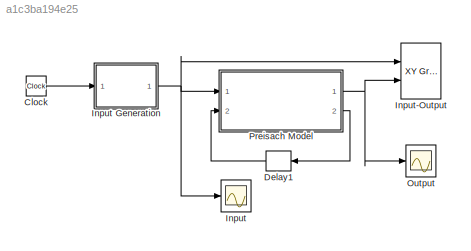
MODEL slx_a1c3ba194e25
KIND model
CONFIG AbsTol = auto
CONFIG EnableMultiTasking = off
CONFIG FixedStep = 0.05
CONFIG MaxStep = 0.1
CONFIG MinStep = 0.01
CONFIG RelTol = 1e-3
CONFIG SampleTimeConstraint = Unconstrained
CONFIG Solver = FixedStepAuto
CONFIG SolverName = FixedStepAuto
CONFIG StartTime = 0.0
CONFIG StopTime = simTotalTime
BLOCK [Clock] Clock
BLOCK [Delay] Delay1
  DelayLength = 1
  InitialCondition = initialRelays
  InputPortMap = u0
  Ports = [1, 1]
BLOCK [Scope] Input
  NumInputPorts = 1
  Ports = [1]
  ScopeSpecificationString = Simulink.scopes.TimeScopeBlockCfg('CurrentConfiguration', extmgr.ConfigurationSet(extmgr.Configuration('Core','General UI',true),extmgr.Configuration('Core','Source UI',true),extmgr.Configuration('Sources','WiredSimulink',true,'DataLoggingVariableName','ScopeData1'),extmgr.Configuration('Visuals','Time Domain',true,'SerializedDisplays',{struct('MinYLimReal','-1.13045','MaxYLimReal','1.19893','YLab...<+1414ch>
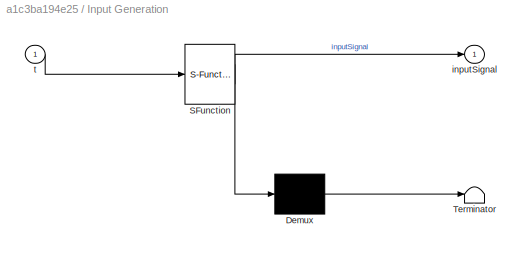
BLOCK [SubSystem] Input Generation
  ErrorFcn = Stateflow.Translate.translate
  PermitHierarchicalResolution = ExplicitOnly
  Ports = [1, 1]
  RequestExecContextInheritance = off
  SFBlockType = MATLAB Function
  TreatAsAtomicUnit = on
  Variant = off
BLOCK [Demux] Input Generation/ Demux 
  Outputs = 1
  Ports = [1, 1]
BLOCK [S-Function] Input Generation/ SFunction 
  EnableBusSupport = on
  FunctionName = sf_sfun
  Parameters = initialInput,inputMax,inputMin,simTotalTime
  PortCounts = [1 2]
  Ports = [1, 2]
  SFcnIsStateOwnerBlock = off
  SFunctionDeploymentMode = off
  Tag = Stateflow S-Function SimplePreisach 1
BLOCK [Terminator] Input Generation/ Terminator 
BLOCK [Outport] Input Generation/inputSignal
  IconDisplay = Port number
BLOCK [Inport] Input Generation/t
  IconDisplay = Port number
BLOCK [Reference] Input-Output  REF=simulink/Sinks/XY Graph
  Ports = [2]
  SourceBlock = simulink/Sinks/XY Graph
  SourceProductBaseCode = SL
  SourceProductName = Simulink
  SourceType = XY scope.
BLOCK [Scope] Output
  NumInputPorts = 1
  Ports = [1]
  ScopeSpecificationString = Simulink.scopes.TimeScopeBlockCfg('CurrentConfiguration', extmgr.ConfigurationSet(extmgr.Configuration('Core','General UI',true),extmgr.Configuration('Core','Source UI',true),extmgr.Configuration('Sources','WiredSimulink',true),extmgr.Configuration('Visuals','Time Domain',true,'SerializedDisplays',{struct('MinYLimReal','-2.04939','MaxYLimReal','0.05914','YLabelReal','','MinYLimMag','0.00000','MaxY...<+1401ch>
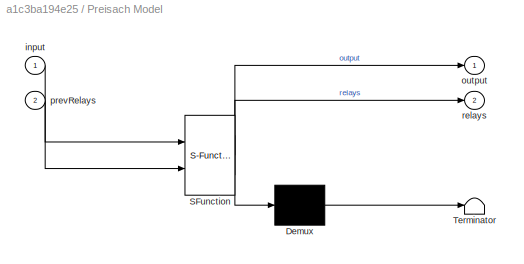
BLOCK [SubSystem] Preisach Model
  ErrorFcn = Stateflow.Translate.translate
  PermitHierarchicalResolution = ExplicitOnly
  Ports = [2, 2]
  RequestExecContextInheritance = off
  SFBlockType = MATLAB Function
  TreatAsAtomicUnit = on
  Variant = off
BLOCK [Demux] Preisach Model/ Demux 
  Outputs = 1
  Ports = [1, 1]
BLOCK [S-Function] Preisach Model/ SFunction 
  EnableBusSupport = on
  FunctionName = sf_sfun
  Parameters = gridArea,gridDen,gridLength,hysteronMax,hysteronMin,offset,weightFunc,xyGrid
  PortCounts = [2 3]
  Ports = [2, 3]
  SFcnIsStateOwnerBlock = off
  SFunctionDeploymentMode = off
  Tag = Stateflow S-Function SimplePreisach 2
BLOCK [Terminator] Preisach Model/ Terminator 
BLOCK [Inport] Preisach Model/input
  IconDisplay = Port number
BLOCK [Outport] Preisach Model/output
  IconDisplay = Port number
BLOCK [Inport] Preisach Model/prevRelays
  IconDisplay = Port number
  Port = 2
BLOCK [Outport] Preisach Model/relays
  IconDisplay = Port number
  Port = 2
LINE Clock:1 -> Input Generation:1
LINE Delay1:1 -> Preisach Model:2
NET Input Generation:1 -> Input-Output:1, Input:1, Preisach Model:1
NET Preisach Model:1 -> Input-Output:2, Output:1
LINE Preisach Model:2 -> Delay1:1
note: NET lines group one-source signal fan-out (src -> all destinations, sorted); 1:1 wires keep LINE
CHART Input Generation states=1 transitions=1
  STATE_LABEL 'eML_blk_kernel()'
  STATE_LABEL 'SCRIPT:\nfunction inputSignal = fcn(t,...\n    simTotalTime, inputMin, inputMax, initialInput)\n\ninputMinFactor = 1.00;\ninputMaxFactor = 1.00;\n\n% amplitude = (inputMaxFactor*inputMax - inputMinFactor*inputMin)/2;\n\n% timeFactor = ( simTotalTime - 1.0*t )/simTotalTime;\n% amplitude = timeFactor*(inputMaxFactor*inputMax - inputMinFactor*inputMin)/2;\n\ndivTime = simTotalTime/4.11;\nif(t<divTime)\n    timeFac...<+425ch>'
CHART Preisach Model states=1 transitions=1
  STATE_LABEL 'eML_blk_kernel()'
  STATE_LABEL 'SCRIPT:\nfunction [output, relays] = fcn(input, prevRelays, ...\n    weightFunc, offset, hysteronMin, hysteronMax, gridDen, xyGrid, gridLength, gridArea)\n\n%     output = offset;\n%     relays = prevRelays;\n%     for i=1:gridDen\n%         ii = gridDen-i+1; %index inversion for rows\n%         for j=1:i\n%             if( input >= xyGrid(i) && relays(ii,j) ~= hysteronMax )\n%                 relays(ii,j) ...<+1653ch>'
